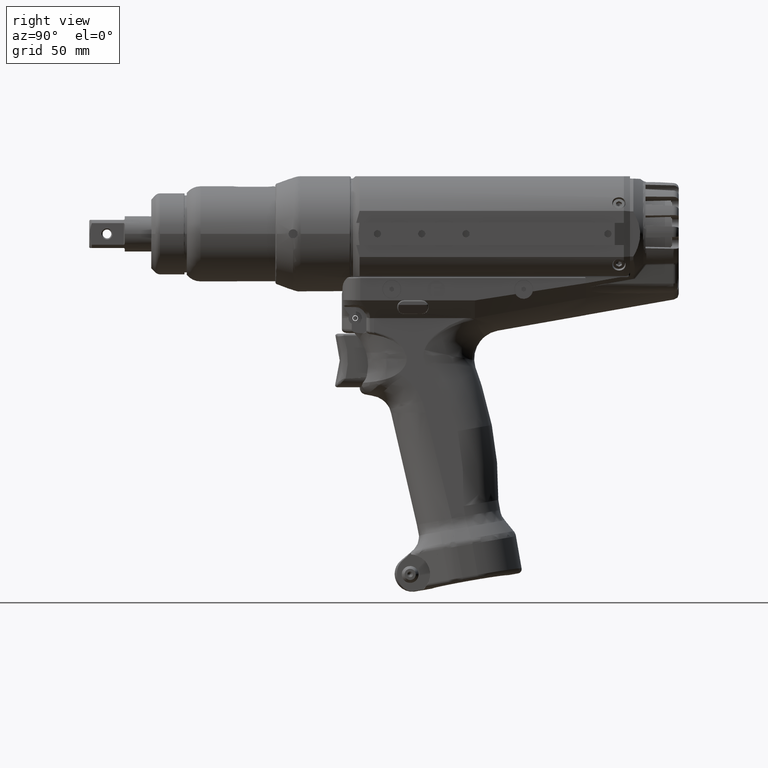
[diagram: clean part render]
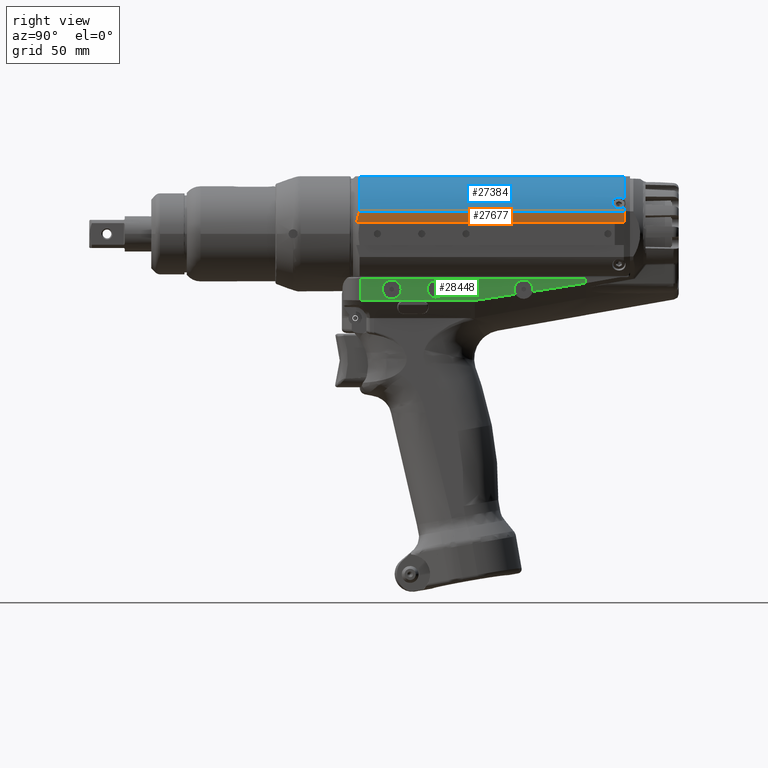
[diagram: same view with three faces highlighted in distinct colors, each labeled with its STEP entity id]
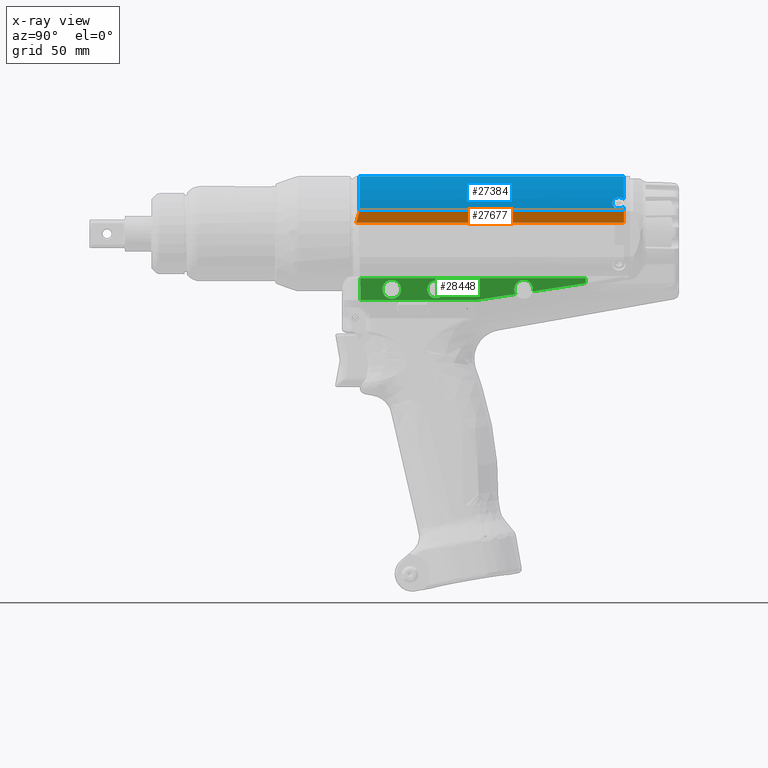
[diagram: x-ray of the same camera — body ghosted, the three highlighted faces saturated]
A machine part, right view with three faces highlighted in distinct colors.
The next image is the same camera in x-ray (body ghosted, the three faces saturated) — at least one of them is partly hidden behind the body in this view.
Their STEP definitions:

[orange] entity #27677 — the highlighted planar face has unit normal (1, -0, 0).
#963=(
BOUNDED_CURVE()
B_SPLINE_CURVE(2,(#47576,#47577,#47578),.UNSPECIFIED.,.F.,.F.)
B_SPLINE_CURVE_WITH_KNOTS((3,3),(1.25241040698703,1.88736466300047),
 .UNSPECIFIED.)
CURVE()
GEOMETRIC_REPRESENTATION_ITEM()
RATIONAL_B_SPLINE_CURVE((1.12962962962963,1.15156642127415,1.16242719898379))
REPRESENTATION_ITEM('')
);
#1179=LINE('',#40600,#2906);
#1587=LINE('',#47538,#3314);
#1596=LINE('',#47571,#3323);
#2906=VECTOR('',#31769,10.);
#3314=VECTOR('',#33381,10.);
#3323=VECTOR('',#33404,10.);
#4694=PLANE('',#29644);
#5561=FACE_OUTER_BOUND('',#7168,.T.);
#7168=EDGE_LOOP('',(#20132,#20133,#20134,#20135));
#11052=VERTEX_POINT('',#40597);
#11053=VERTEX_POINT('',#40599);
#11914=VERTEX_POINT('',#47537);
#11925=VERTEX_POINT('',#47570);
#13962=EDGE_CURVE('',#11052,#11053,#1179,.T.);
#15102=EDGE_CURVE('',#11914,#11053,#1587,.T.);
#15117=EDGE_CURVE('',#11925,#11914,#1596,.T.);
#15119=EDGE_CURVE('',#11052,#11925,#963,.T.);
#20132=ORIENTED_EDGE('',*,*,#15102,.T.);
#20133=ORIENTED_EDGE('',*,*,#13962,.F.);
#20134=ORIENTED_EDGE('',*,*,#15119,.T.);
#20135=ORIENTED_EDGE('',*,*,#15117,.T.);
#27677=ADVANCED_FACE('',(#5561),#4694,.T.);
#29644=AXIS2_PLACEMENT_3D('',#47575,#33405,#33406);
#31769=DIRECTION('',(2.20483306713371E-17,1.,2.35171747994582E-17));
#33381=DIRECTION('',(0.,-2.35171747994582E-17,1.));
#33404=DIRECTION('',(2.20483306713371E-17,1.,2.35171747994582E-17));
#33405=DIRECTION('center_axis',(1.,-2.20483306713371E-17,0.));
#33406=DIRECTION('ref_axis',(0.,2.35171747994582E-17,-1.));
#40597=CARTESIAN_POINT('',(26.,15.5,10.3923048454133));
#40599=CARTESIAN_POINT('',(26.,134.752522580545,10.3923048454133));
#40600=CARTESIAN_POINT('',(26.,2.58276983439302E-14,10.3923048454133));
#47537=CARTESIAN_POINT('',(26.,134.752522580545,5.00000000000001));
#47538=CARTESIAN_POINT('',(26.,134.752522580545,5.19615242270664));
#47570=CARTESIAN_POINT('',(26.,13.9764045897475,5.));
#47571=CARTESIAN_POINT('',(26.,2.59545101195517E-14,5.));
#47575=CARTESIAN_POINT('Origin',(26.,2.58276983439302E-14,10.3923048454133));
#47576=CARTESIAN_POINT('Ctrl Pts',(26.,15.5,10.3923048454133));
#47577=CARTESIAN_POINT('Ctrl Pts',(26.,14.4713257290941,7.62074646507215));
#47578=CARTESIAN_POINT('Ctrl Pts',(26.,13.9764045897475,5.));

[blue] entity #27384 — the highlighted cylindrical surface (partial cylindrical patch) has radius 28 mm, axis along (0, 1, 0).
#300=CYLINDRICAL_SURFACE('',#29033,28.);
#1178=LINE('',#40596,#2905);
#1179=LINE('',#40600,#2906);
#2905=VECTOR('',#31766,10.);
#2906=VECTOR('',#31769,10.);
#5268=FACE_OUTER_BOUND('',#6857,.T.);
#6857=EDGE_LOOP('',(#18419,#18420,#18421,#18422,#18423,#18424,#18425));
#8573=CIRCLE('',#29034,28.);
#8574=CIRCLE('',#29035,28.);
#8575=CIRCLE('',#29036,28.);
#9746=B_SPLINE_CURVE_WITH_KNOTS('',3,(#40604,#40605,#40606,#40607,#40608,
#40609,#40610,#40611,#40612,#40613,#40614,#40615,#40616,#40617,#40618,#40619,
#40620,#40621,#40622,#40623,#40624,#40625,#40626,#40627),.UNSPECIFIED.,
 .F.,.F.,(4,2,2,2,2,2,2,2,2,2,2,4),(0.659587477362353,0.67859485447748,
0.791694335566858,0.904793816656237,1.01789329774561,1.13099277883499,1.24409175190967,
1.35719072498435,1.47028969805903,1.58338867113372,1.69648815222309,1.80958763331247),
 .UNSPECIFIED.);
#9747=B_SPLINE_CURVE_WITH_KNOTS('',3,(#40629,#40630,#40631,#40632,#40633,
#40634,#40635,#40636),.UNSPECIFIED.,.F.,.F.,(4,2,2,4),(0.,0.113099481089379,
0.226198962178758,0.245206339293309),.UNSPECIFIED.);
#11050=VERTEX_POINT('',#40594);
#11051=VERTEX_POINT('',#40595);
#11052=VERTEX_POINT('',#40597);
#11053=VERTEX_POINT('',#40599);
#11054=VERTEX_POINT('',#40601);
#11055=VERTEX_POINT('',#40603);
#11056=VERTEX_POINT('',#40628);
#13960=EDGE_CURVE('',#11050,#11051,#1178,.T.);
#13961=EDGE_CURVE('',#11050,#11052,#8573,.T.);
#13962=EDGE_CURVE('',#11052,#11053,#1179,.T.);
#13963=EDGE_CURVE('',#11053,#11054,#8574,.T.);
#13964=EDGE_CURVE('',#11054,#11055,#9746,.T.);
#13965=EDGE_CURVE('',#11055,#11056,#9747,.T.);
#13966=EDGE_CURVE('',#11056,#11051,#8575,.T.);
#18419=ORIENTED_EDGE('',*,*,#13960,.F.);
#18420=ORIENTED_EDGE('',*,*,#13961,.T.);
#18421=ORIENTED_EDGE('',*,*,#13962,.T.);
#18422=ORIENTED_EDGE('',*,*,#13963,.T.);
#18423=ORIENTED_EDGE('',*,*,#13964,.T.);
#18424=ORIENTED_EDGE('',*,*,#13965,.T.);
#18425=ORIENTED_EDGE('',*,*,#13966,.T.);
#27384=ADVANCED_FACE('',(#5268),#300,.T.);
#29033=AXIS2_PLACEMENT_3D('',#40593,#31764,#31765);
#29034=AXIS2_PLACEMENT_3D('',#40598,#31767,#31768);
#29035=AXIS2_PLACEMENT_3D('',#40602,#31770,#31771);
#29036=AXIS2_PLACEMENT_3D('',#40637,#31772,#31773);
#31764=DIRECTION('center_axis',(2.20483306713371E-17,1.,2.35171747994582E-17));
#31765=DIRECTION('ref_axis',(-0.371153744479045,3.00206970876759E-17,-0.928571428571429));
#31766=DIRECTION('',(2.20483306713371E-17,1.,2.35171747994582E-17));
#31767=DIRECTION('center_axis',(2.20483306713371E-17,1.,2.35171747994582E-17));
#31768=DIRECTION('ref_axis',(-0.371153744479045,3.00206970876759E-17,-0.928571428571429));
#31769=DIRECTION('',(2.20483306713371E-17,1.,2.35171747994582E-17));
#31770=DIRECTION('center_axis',(-2.20483306713371E-17,-1.,-2.35171747994582E-17));
#31771=DIRECTION('ref_axis',(-0.371153744479045,3.00206970876759E-17,-0.928571428571429));
#31772=DIRECTION('center_axis',(-2.20483306713371E-17,-1.,-2.35171747994582E-17));
#31773=DIRECTION('ref_axis',(-0.371153744479045,3.00206970876759E-17,-0.928571428571429));
#40593=CARTESIAN_POINT('Origin',(0.,2.66453525910038E-14,-3.58037462210709E-59));
#40594=CARTESIAN_POINT('',(10.3923048454133,15.5,26.));
#40595=CARTESIAN_POINT('',(10.3923048454132,134.752522580545,26.));
#40596=CARTESIAN_POINT('',(10.3923048454133,2.58047730725488E-14,26.));
#40597=CARTESIAN_POINT('',(26.,15.5,10.3923048454133));
#40598=CARTESIAN_POINT('Origin',(3.41749125405725E-16,15.5,3.64516209391602E-16));
#40599=CARTESIAN_POINT('',(26.,134.752522580545,10.3923048454133));
#40600=CARTESIAN_POINT('',(26.,2.58276983439302E-14,10.3923048454133));
#40601=CARTESIAN_POINT('',(25.1786430748654,134.752522580545,12.2489155809212));
#40602=CARTESIAN_POINT('Origin',(2.97106817665269E-15,134.752522580545,
3.16899862819463E-15));
#40603=CARTESIAN_POINT('',(22.6091269024824,132.5,16.5174871184284));
#40604=CARTESIAN_POINT('Ctrl Pts',(25.1786430748634,134.752522580549,12.2489155809252));
#40605=CARTESIAN_POINT('Ctrl Pts',(25.1999011327329,134.709883517297,12.2052179125051));
#40606=CARTESIAN_POINT('Ctrl Pts',(25.2202555218428,134.66605664269,12.1630886004746));
#40607=CARTESIAN_POINT('Ctrl Pts',(25.3552613759581,134.355126213416,11.8820027326092));
#40608=CARTESIAN_POINT('Ctrl Pts',(25.4519975031657,134.017977755813,11.6713110830785));
#40609=CARTESIAN_POINT('Ctrl Pts',(25.5787414149292,133.27892619462,11.3908589248203));
#40610=CARTESIAN_POINT('Ctrl Pts',(25.6091269024824,132.876998270298,11.3213346957217));
#40611=CARTESIAN_POINT('Ctrl Pts',(25.6091269024824,132.123001729702,11.3213346957217));
#40612=CARTESIAN_POINT('Ctrl Pts',(25.5787414149292,131.72107380538,11.3908589248203));
#40613=CARTESIAN_POINT('Ctrl Pts',(25.4519975031657,130.982022244187,11.6713110830785));
#40614=CARTESIAN_POINT('Ctrl Pts',(25.3552613759581,130.644873786584,11.8820027326092));
#40615=CARTESIAN_POINT('Ctrl Pts',(25.1240991492651,130.112486721974,12.3632887889325));
#40616=CARTESIAN_POINT('Ctrl Pts',(24.9741578316122,129.881653403056,12.6660262380694));
#40617=CARTESIAN_POINT('Ctrl Pts',(24.6309052059838,129.57540206053,13.3212345070753));
#40618=CARTESIAN_POINT('Ctrl Pts',(24.4372095944221,129.5,13.6735113872513));
#40619=CARTESIAN_POINT('Ctrl Pts',(24.0602130175065,129.5,14.3264886127487));
#40620=CARTESIAN_POINT('Ctrl Pts',(23.8519800958889,129.57540206053,14.6703723730507));
#40621=CARTESIAN_POINT('Ctrl Pts',(23.4561794029744,129.881653403056,15.2952420012636));
#40622=CARTESIAN_POINT('Ctrl Pts',(23.2689717401714,130.112486721974,15.5764637159963));
#40623=CARTESIAN_POINT('Ctrl Pts',(22.9677469022548,130.644873786584,16.0172991048695));
#40624=CARTESIAN_POINT('Ctrl Pts',(22.8336506449997,130.982022244187,16.2064208732604));
#40625=CARTESIAN_POINT('Ctrl Pts',(22.6541439072837,131.72107380538,16.4564103997517));
#40626=CARTESIAN_POINT('Ctrl Pts',(22.6091269024824,132.123001729702,16.5174871184284));
#40627=CARTESIAN_POINT('Ctrl Pts',(22.6091269024824,132.5,16.5174871184284));
#40628=CARTESIAN_POINT('',(23.1971935993215,134.752522580545,15.6808867451939));
#40629=CARTESIAN_POINT('Ctrl Pts',(22.6091269024824,132.5,16.5174871184284));
#40630=CARTESIAN_POINT('Ctrl Pts',(22.6091269024824,132.876998270298,16.5174871184284));
#40631=CARTESIAN_POINT('Ctrl Pts',(22.6541439072837,133.27892619462,16.4564103997517));
#40632=CARTESIAN_POINT('Ctrl Pts',(22.8336506449997,134.017977755813,16.2064208732604));
#40633=CARTESIAN_POINT('Ctrl Pts',(22.9677469022548,134.355126213416,16.0172991048695));
#40634=CARTESIAN_POINT('Ctrl Pts',(23.1436714774125,134.666056642688,15.7598376716145));
#40635=CARTESIAN_POINT('Ctrl Pts',(23.1699793373192,134.709883517294,15.7211455975528));
#40636=CARTESIAN_POINT('Ctrl Pts',(23.1971935993215,134.752522580545,15.6808867451939));
#40637=CARTESIAN_POINT('Origin',(2.97106817665269E-15,134.752522580545,
3.16899862819463E-15));

[green] entity #28448 — the highlighted planar face has unit normal (-1, 0, 0).
#733=FACE_BOUND('',#8008,.T.);
#734=FACE_BOUND('',#8009,.T.);
#1819=LINE('',#51074,#3546);
#2357=LINE('',#69638,#4084);
#2359=LINE('',#69670,#4086);
#2363=LINE('',#69684,#4090);
#2364=LINE('',#69686,#4091);
#2365=LINE('',#69688,#4092);
#2366=LINE('',#69693,#4093);
#3546=VECTOR('',#34511,10.);
#4084=VECTOR('',#36555,10.);
#4086=VECTOR('',#36561,10.);
#4090=VECTOR('',#36565,10.);
#4091=VECTOR('',#36568,10.);
#4092=VECTOR('',#36569,10.);
#4093=VECTOR('',#36574,10.);
#5014=PLANE('',#30841);
#6332=FACE_OUTER_BOUND('',#8007,.T.);
#8007=EDGE_LOOP('',(#24280,#24281,#24282,#24283,#24284,#24285,#24286,#24287,
#24288,#24289));
#8008=EDGE_LOOP('',(#24290));
#8009=EDGE_LOOP('',(#24291));
#9417=CIRCLE('',#30842,4.24999999999459);
#9418=CIRCLE('',#30843,4.24999999999459);
#9419=CIRCLE('',#30844,4.25);
#9420=CIRCLE('',#30845,4.);
#9955=B_SPLINE_CURVE_WITH_KNOTS('',3,(#44108,#44109,#44110,#44111,#44112,
#44113,#44114,#44115,#44116,#44117,#44118,#44119,#44120,#44121,#44122,#44123,
#44124,#44125,#44126,#44127,#44128,#44129,#44130,#44131,#44132,#44133,#44134,
#44135),.UNSPECIFIED.,.F.,.F.,(4,3,3,3,3,3,3,3,3,4),(-8.79292812734414,
-8.5521792359588,-8.31167414702191,-8.07092434338768,-7.98779242415166,
0.0211005534505763,0.251240943237416,0.481148273671902,0.71128953551673,
0.790758201662915),.UNSPECIFIED.);
#11586=VERTEX_POINT('',#44084);
#11587=VERTEX_POINT('',#44107);
#12268=VERTEX_POINT('',#51071);
#12269=VERTEX_POINT('',#51073);
#13152=VERTEX_POINT('',#69126);
#13161=VERTEX_POINT('',#69637);
#13166=VERTEX_POINT('',#69682);
#13167=VERTEX_POINT('',#69687);
#13168=VERTEX_POINT('',#69689);
#13169=VERTEX_POINT('',#69691);
#13170=VERTEX_POINT('',#69694);
#13171=VERTEX_POINT('',#69696);
#14630=EDGE_CURVE('',#11586,#11587,#9955,.T.);
#15760=EDGE_CURVE('',#12269,#12268,#1819,.T.);
#17097=EDGE_CURVE('',#13161,#13152,#2357,.T.);
#17101=EDGE_CURVE('',#13152,#11587,#2359,.T.);
#17106=EDGE_CURVE('',#13166,#11586,#2363,.T.);
#17107=EDGE_CURVE('',#12268,#13161,#2364,.T.);
#17108=EDGE_CURVE('',#13167,#13166,#2365,.T.);
#17109=EDGE_CURVE('',#13167,#13168,#9417,.T.);
#17110=EDGE_CURVE('',#13168,#13169,#9418,.T.);
#17111=EDGE_CURVE('',#12269,#13169,#2366,.T.);
#17112=EDGE_CURVE('',#13170,#13170,#9419,.T.);
#17113=EDGE_CURVE('',#13171,#13171,#9420,.T.);
#24280=ORIENTED_EDGE('',*,*,#17107,.T.);
#24281=ORIENTED_EDGE('',*,*,#17097,.T.);
#24282=ORIENTED_EDGE('',*,*,#17101,.T.);
#24283=ORIENTED_EDGE('',*,*,#14630,.F.);
#24284=ORIENTED_EDGE('',*,*,#17106,.F.);
#24285=ORIENTED_EDGE('',*,*,#17108,.F.);
#24286=ORIENTED_EDGE('',*,*,#17109,.T.);
#24287=ORIENTED_EDGE('',*,*,#17110,.T.);
#24288=ORIENTED_EDGE('',*,*,#17111,.F.);
#24289=ORIENTED_EDGE('',*,*,#15760,.T.);
#24290=ORIENTED_EDGE('',*,*,#17112,.F.);
#24291=ORIENTED_EDGE('',*,*,#17113,.T.);
#28448=ADVANCED_FACE('',(#6332,#733,#734),#5014,.F.);
#30841=AXIS2_PLACEMENT_3D('',#69685,#36566,#36567);
#30842=AXIS2_PLACEMENT_3D('',#69690,#36570,#36571);
#30843=AXIS2_PLACEMENT_3D('',#69692,#36572,#36573);
#30844=AXIS2_PLACEMENT_3D('',#69695,#36575,#36576);
#30845=AXIS2_PLACEMENT_3D('',#69697,#36577,#36578);
#34511=DIRECTION('',(1.6887076532456E-15,-3.68227857356751E-17,1.));
#36555=DIRECTION('',(-1.68870765324554E-15,1.91326588096991E-14,-1.));
#36561=DIRECTION('',(3.06725891521878E-15,1.,-9.41937697370393E-10));
#36565=DIRECTION('',(-3.16288958293629E-15,-1.,-3.28826543404829E-15));
#36566=DIRECTION('center_axis',(-1.,3.06725891680944E-15,1.6887076532456E-15));
#36567=DIRECTION('ref_axis',(3.06725891680944E-15,1.,3.68227857356699E-17));
#36568=DIRECTION('',(-3.06725891680944E-15,-1.,-3.20757863407888E-16));
#36569=DIRECTION('',(-3.29044060213315E-15,-0.988108075996641,-0.153760951318));
#36570=DIRECTION('center_axis',(-1.,1.04760903854893E-9,9.44472092708455E-9));
#36571=DIRECTION('ref_axis',(-1.04740319952419E-9,0.975697317243157,-0.219122671406924));
#36572=DIRECTION('center_axis',(-1.,1.04760903854893E-9,9.44472092708455E-9));
#36573=DIRECTION('ref_axis',(-1.04740319952419E-9,0.975697317243157,-0.219122671406924));
#36574=DIRECTION('',(-2.24891548812844E-11,-0.98810807547842,-0.153760954648221));
#36575=DIRECTION('center_axis',(1.,-3.06725891680944E-15,-1.6887076532456E-15));
#36576=DIRECTION('ref_axis',(-3.06725891680943E-15,-1.,5.18775615367683E-15));
#36577=DIRECTION('center_axis',(-1.,3.06725891680944E-15,1.6887076532456E-15));
#36578=DIRECTION('ref_axis',(-3.06725891680944E-15,-1.,5.18288726576908E-16));
#44084=CARTESIAN_POINT('',(19.5000000004861,44.2810249658111,-29.999999998411));
#44107=CARTESIAN_POINT('',(19.5000000031283,34.7189751001913,-30.0000000061488));
#44108=CARTESIAN_POINT('Ctrl Pts',(19.5,44.2810249648097,-29.9999999978442));
#44109=CARTESIAN_POINT('Ctrl Pts',(19.5,44.2050746882155,-29.9802269774665));
#44110=CARTESIAN_POINT('Ctrl Pts',(19.5,44.1281880681645,-29.9632943503552));
#44111=CARTESIAN_POINT('Ctrl Pts',(19.5,44.0506913010282,-29.9493051457405));
#44112=CARTESIAN_POINT('Ctrl Pts',(19.5,43.9732730135952,-29.9353301077635));
#44113=CARTESIAN_POINT('Ctrl Pts',(19.5,43.8952464511942,-29.924292708511));
#44114=CARTESIAN_POINT('Ctrl Pts',(19.5,43.8169499549546,-29.9162453530049));
#44115=CARTESIAN_POINT('Ctrl Pts',(19.5,43.7385737917796,-29.9081898092888));
#44116=CARTESIAN_POINT('Ctrl Pts',(19.5,43.6599278066879,-29.9031304408392));
#44117=CARTESIAN_POINT('Ctrl Pts',(19.5,43.5813547693189,-29.9010677012605));
#44118=CARTESIAN_POINT('Ctrl Pts',(19.5,43.5542231692175,-29.9003554286129));
#44119=CARTESIAN_POINT('Ctrl Pts',(19.5,43.5271002508181,-29.9000000017348));
#44120=CARTESIAN_POINT('Ctrl Pts',(19.5,43.5000000000299,-29.9000000018484));
#44121=CARTESIAN_POINT('Ctrl Pts',(19.5,40.8333333333496,-29.9000000130277));
#44122=CARTESIAN_POINT('Ctrl Pts',(19.5,38.166666666673,-29.9000000242067));
#44123=CARTESIAN_POINT('Ctrl Pts',(19.5,35.4999999999999,-29.9000000353853));
#44124=CARTESIAN_POINT('Ctrl Pts',(19.5,35.4215180474759,-29.9000000357145));
#44125=CARTESIAN_POINT('Ctrl Pts',(19.5,35.3428455748668,-29.9029847094057));
#44126=CARTESIAN_POINT('Ctrl Pts',(19.5,35.2643242136303,-29.9089715790933));
#44127=CARTESIAN_POINT('Ctrl Pts',(19.5,35.1858823696729,-29.9149523859774));
#44128=CARTESIAN_POINT('Ctrl Pts',(19.5,35.1075919916306,-29.9239293199923));
#44129=CARTESIAN_POINT('Ctrl Pts',(19.5,35.0297937095095,-29.93586785281));
#44130=CARTESIAN_POINT('Ctrl Pts',(19.5,34.9519162673988,-29.9478185331212));
#44131=CARTESIAN_POINT('Ctrl Pts',(19.5,34.8745325743177,-29.9627367177654));
#44132=CARTESIAN_POINT('Ctrl Pts',(19.5,34.797974457102,-29.9805364871152));
#44133=CARTESIAN_POINT('Ctrl Pts',(19.5,34.7715386436845,-29.9866828161854));
#44134=CARTESIAN_POINT('Ctrl Pts',(19.5,34.7452011367061,-29.9931722918888));
#44135=CARTESIAN_POINT('Ctrl Pts',(19.5,34.7189751134265,-30.00000001757));
#51071=CARTESIAN_POINT('',(19.5000000000003,117.50000000001,-19.9999999999988));
#51073=CARTESIAN_POINT('',(19.5000000000003,117.50000000001,-22.2194262738939));
#51074=CARTESIAN_POINT('',(19.5000000000003,117.50000000001,-22.2194262738939));
#69126=CARTESIAN_POINT('',(19.4999999999999,15.8366236645522,-29.999999999784));
#69637=CARTESIAN_POINT('',(19.4994152920681,15.8366238755271,-19.999999999999));
#69638=CARTESIAN_POINT('',(19.5,15.8366236645519,-19.999999999999));
#69670=CARTESIAN_POINT('',(19.4999999999999,15.8366236645522,-29.999999999784));
#69682=CARTESIAN_POINT('',(19.5000000000001,67.4999999999799,-29.9999999999904));
#69684=CARTESIAN_POINT('',(19.5000000000001,67.4999999999799,-29.9999999999904));
#69685=CARTESIAN_POINT('Origin',(19.4999999999999,15.836623664552,-29.9999999999905));
#69686=CARTESIAN_POINT('',(19.5000000000003,117.50000000001,-19.9999999999988));
#69687=CARTESIAN_POINT('',(19.499999986548,85.8323438612595,-27.1472769902849));
#69688=CARTESIAN_POINT('',(19.5000000000002,85.8323434441078,-27.147277067821));
#69689=CARTESIAN_POINT('',(19.5000000506745,85.2499999999925,-25.0000000000046));
#69690=CARTESIAN_POINT('Origin',(19.5000000082676,89.4999999999894,-25.0000000000001));
#69691=CARTESIAN_POINT('',(19.500000000328,93.6467135988757,-25.9312713461315));
#69692=CARTESIAN_POINT('Origin',(19.5000000082676,89.4999999999894,-25.0000000000001));
#69693=CARTESIAN_POINT('',(19.5000000000003,117.50000000001,-22.219426273894));
#69694=CARTESIAN_POINT('',(19.5,34.2499999999999,-25.0000000000021));
#69695=CARTESIAN_POINT('Origin',(19.5,29.9999999999999,-25.0000000000021));
#69696=CARTESIAN_POINT('',(19.5000000000001,49.9999999999999,-21.0000000000025));
#69697=CARTESIAN_POINT('Origin',(19.5000000000001,49.9999999999999,-25.0000000000021));